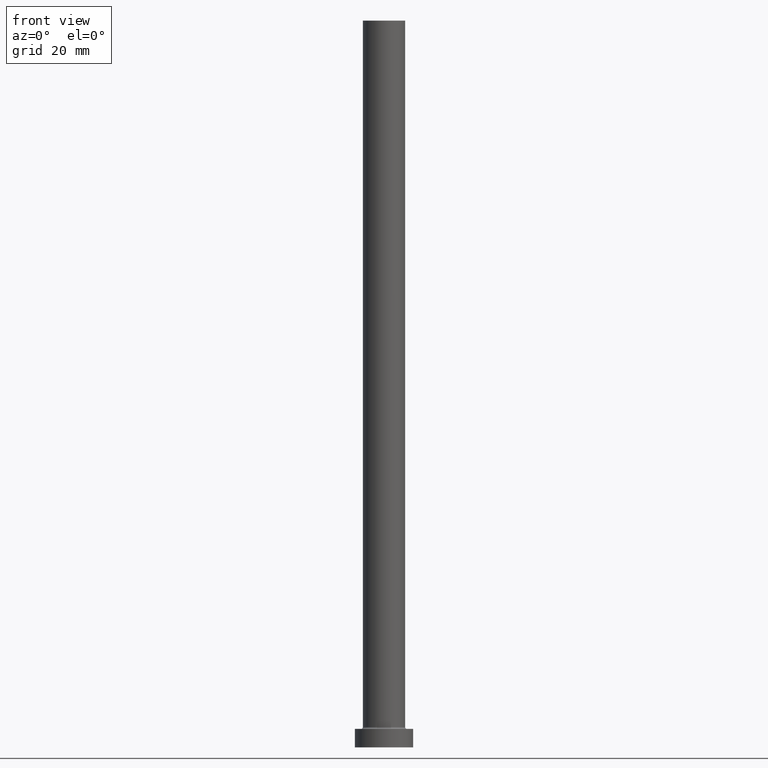
[diagram: clean part render]
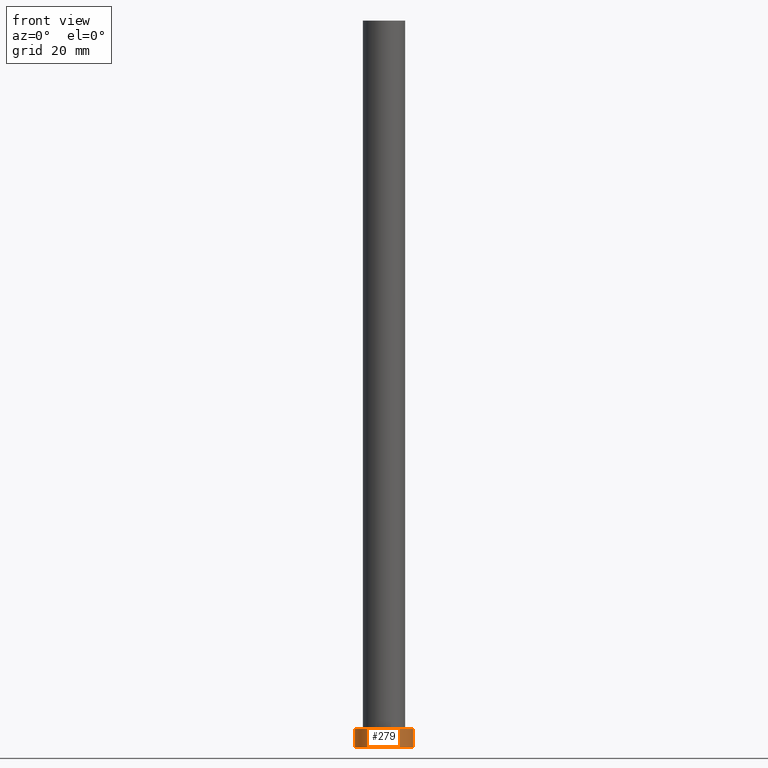
[diagram: same view with one face highlighted and labeled with its STEP entity id]
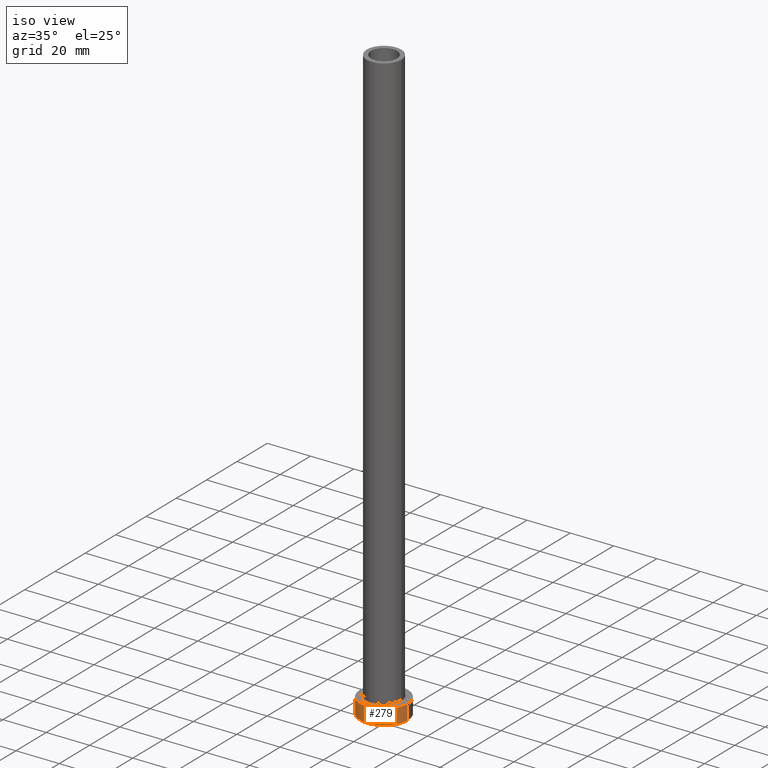
[diagram: same view with one face highlighted and labeled with its STEP entity id]
A machine part, front view. The second image highlights one B-rep face of the part: STEP entity #279.
A second angle (iso view) of the same face is appended — the face is thin or edge-on in the first view.
In plain terms, the highlighted cylindrical surface (edge-blend (fillet) strip) has radius 11 mm, axis along (-0, -0, -1).
Its self-contained STEP definition (entity closure, byte-faithful):
#13 = DIRECTION ( 'NONE',  ( -1.000000000000000000, 0.000000000000000000, 0.000000000000000000 ) ) ;
#19 = DIRECTION ( 'NONE',  ( -0.000000000000000000, -0.000000000000000000, -1.000000000000000000 ) ) ;
#25 = DIRECTION ( 'NONE',  ( 0.000000000000000000, 0.000000000000000000, 1.000000000000000000 ) ) ;
#33 = CARTESIAN_POINT ( 'NONE',  ( -11.00000000000000000, 0.000000000000000000, 0.000000000000000000 ) ) ;
#59 = ORIENTED_EDGE ( 'NONE', *, *, #137, .F. ) ;
#62 = CIRCLE ( 'NONE', #188, 11.00000000000000000 ) ;
#63 = CARTESIAN_POINT ( 'NONE',  ( -11.00000000000000000, 0.000000000000000000, 7.000000000000000000 ) ) ;
#66 = VERTEX_POINT ( 'NONE', #33 ) ;
#69 = CARTESIAN_POINT ( 'NONE',  ( 11.00000000000000000, 1.347111479062088405E-15, 7.000000000000000000 ) ) ;
#74 = AXIS2_PLACEMENT_3D ( 'NONE', #364, #326, #13 ) ;
#80 = EDGE_CURVE ( 'NONE', #66, #394, #62, .T. ) ;
#81 = LINE ( 'NONE', #63, #332 ) ;
#85 = CARTESIAN_POINT ( 'NONE',  ( -11.00000000000000000, 0.000000000000000000, 7.000000000000000000 ) ) ;
#97 = CARTESIAN_POINT ( 'NONE',  ( 0.000000000000000000, 0.000000000000000000, 7.000000000000000000 ) ) ;
#122 = CYLINDRICAL_SURFACE ( 'NONE', #74, 11.00000000000000000 ) ;
#137 = EDGE_CURVE ( 'NONE', #416, #394, #387, .T. ) ;
#142 = DIRECTION ( 'NONE',  ( 1.000000000000000000, 0.000000000000000000, 0.000000000000000000 ) ) ;
#167 = VERTEX_POINT ( 'NONE', #85 ) ;
#177 = DIRECTION ( 'NONE',  ( 0.000000000000000000, 0.000000000000000000, 1.000000000000000000 ) ) ;
#188 = AXIS2_PLACEMENT_3D ( 'NONE', #389, #177, #142 ) ;
#203 = CARTESIAN_POINT ( 'NONE',  ( 11.00000000000000000, 1.347111479062088405E-15, 7.000000000000000000 ) ) ;
#208 = DIRECTION ( 'NONE',  ( -0.000000000000000000, -0.000000000000000000, -1.000000000000000000 ) ) ;
#222 = FACE_OUTER_BOUND ( 'NONE', #338, .T. ) ;
#238 = CARTESIAN_POINT ( 'NONE',  ( 11.00000000000000000, 1.347111479062088405E-15, 0.000000000000000000 ) ) ;
#255 = AXIS2_PLACEMENT_3D ( 'NONE', #97, #25, #306 ) ;
#259 = ORIENTED_EDGE ( 'NONE', *, *, #329, .T. ) ;
#279 = ADVANCED_FACE ( 'NONE', ( #222 ), #122, .T. ) ;
#303 = ORIENTED_EDGE ( 'NONE', *, *, #80, .T. ) ;
#306 = DIRECTION ( 'NONE',  ( 1.000000000000000000, 0.000000000000000000, 0.000000000000000000 ) ) ;
#326 = DIRECTION ( 'NONE',  ( -0.000000000000000000, -0.000000000000000000, -1.000000000000000000 ) ) ;
#329 = EDGE_CURVE ( 'NONE', #167, #66, #81, .T. ) ;
#332 = VECTOR ( 'NONE', #19, 1000.000000000000000 ) ;
#338 = EDGE_LOOP ( 'NONE', ( #59, #447, #259, #303 ) ) ;
#348 = VECTOR ( 'NONE', #208, 1000.000000000000000 ) ;
#364 = CARTESIAN_POINT ( 'NONE',  ( 0.000000000000000000, 0.000000000000000000, 7.000000000000000000 ) ) ;
#373 = EDGE_CURVE ( 'NONE', #167, #416, #461, .T. ) ;
#387 = LINE ( 'NONE', #69, #348 ) ;
#389 = CARTESIAN_POINT ( 'NONE',  ( 0.000000000000000000, 0.000000000000000000, 0.000000000000000000 ) ) ;
#394 = VERTEX_POINT ( 'NONE', #238 ) ;
#416 = VERTEX_POINT ( 'NONE', #203 ) ;
#447 = ORIENTED_EDGE ( 'NONE', *, *, #373, .F. ) ;
#461 = CIRCLE ( 'NONE', #255, 11.00000000000000000 ) ;